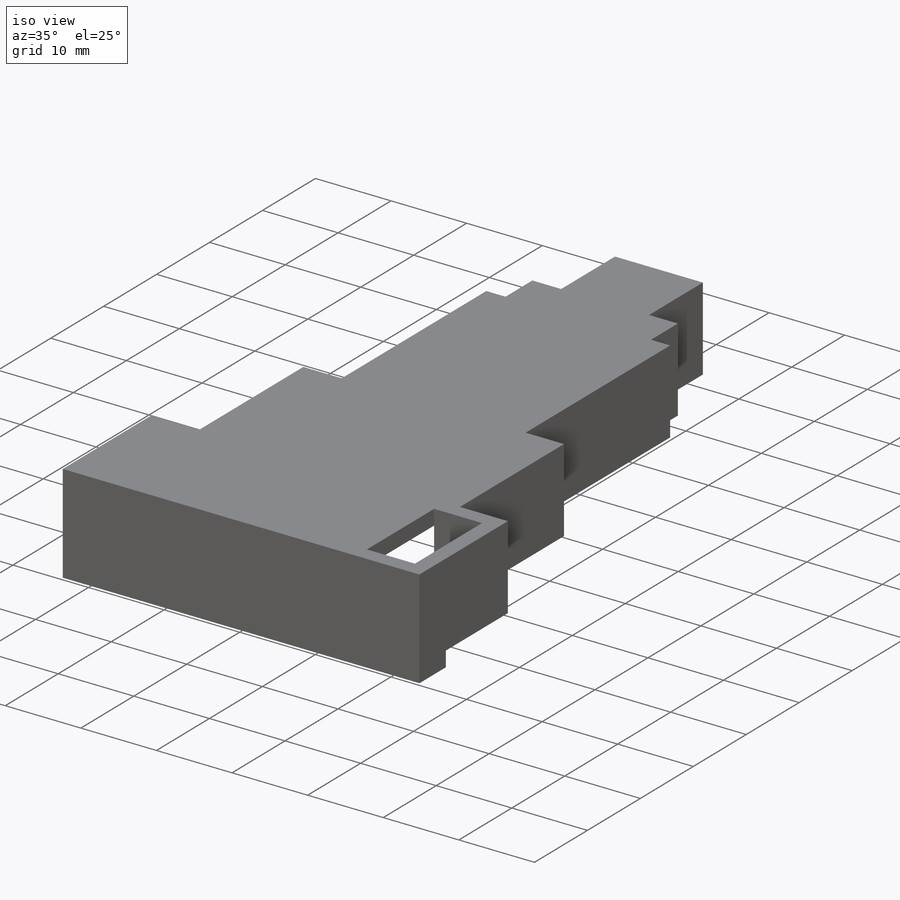
[diagram: iso view]
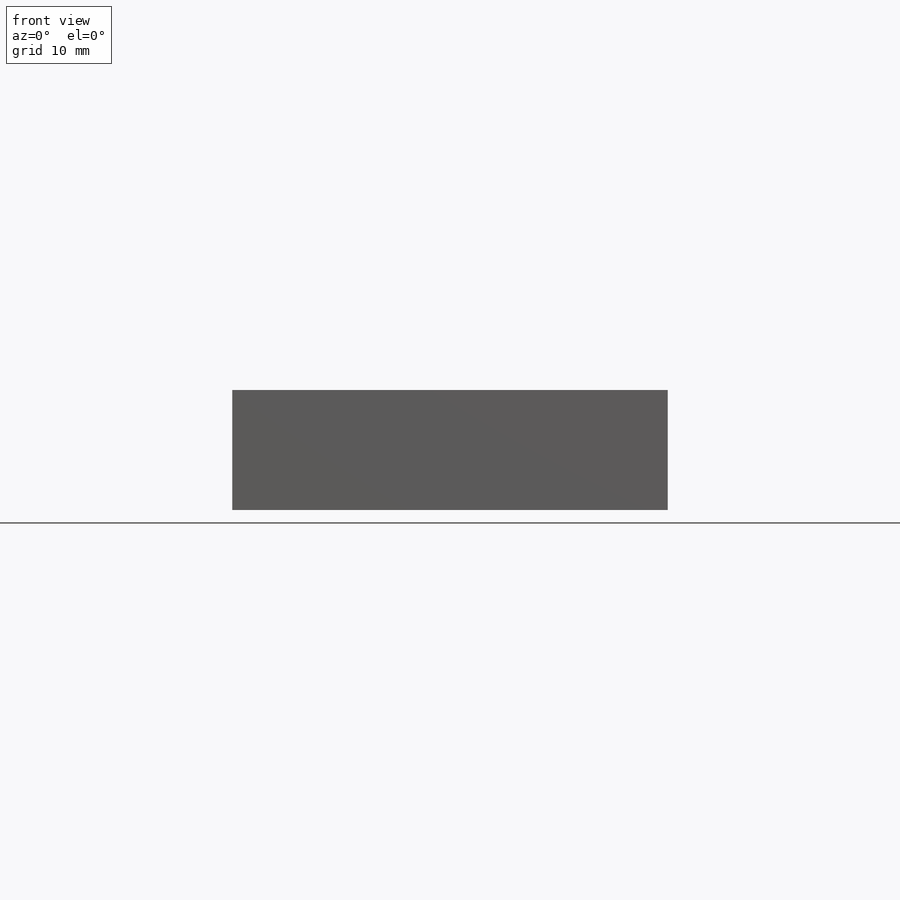
[diagram: front view]
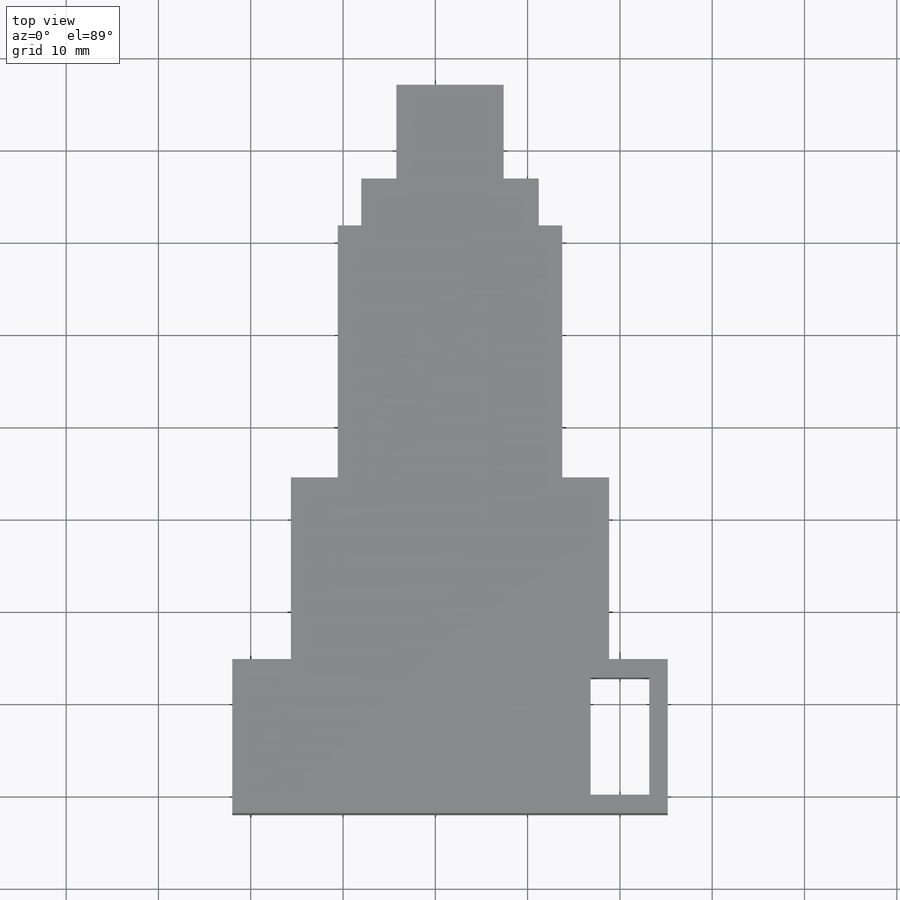
[diagram: top view]
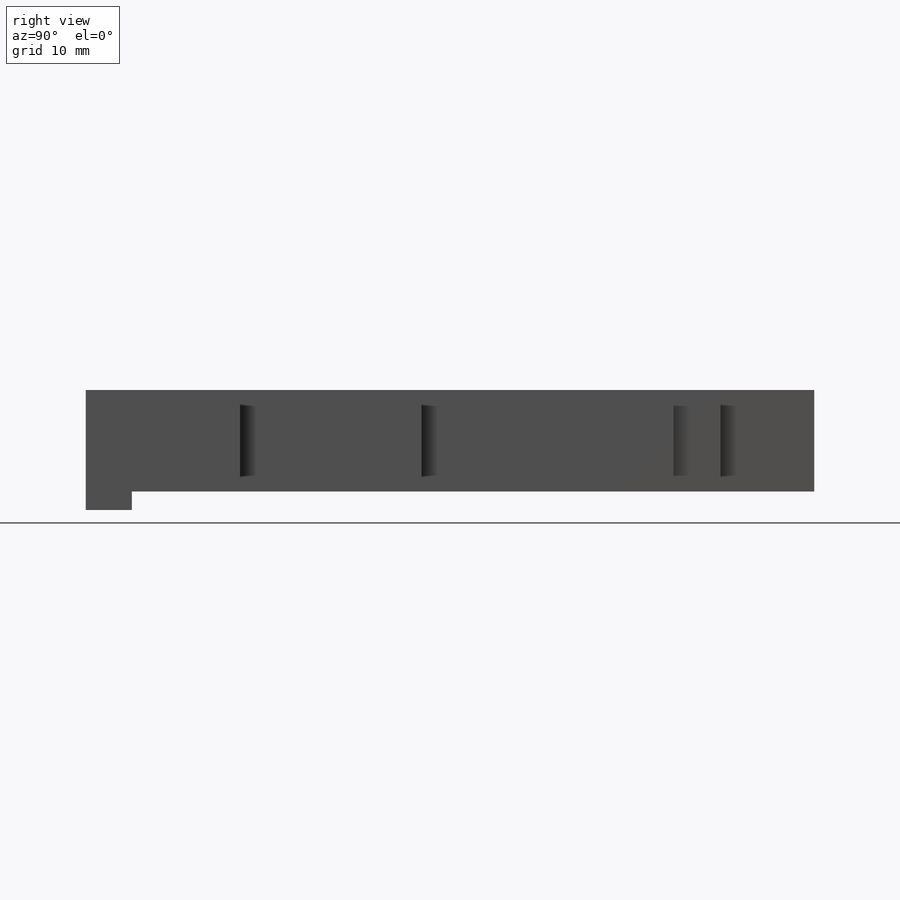
[diagram: right view]
SOLIDWORKS PART (.sldprt)
format: sldprt  version: not decoded by parser v0  size: 317,952 bytes
history: native  units: mm
features: sketch x7, extrude x5, cut_extrude x2, material x1 (+12 scaffold rows collapsed)
feature tree (27):
  scaffold x12  (default folders/planes/origin — collapsed)
  material  "Material <not specified>"
  sketch  "Sketch1"  dims[c1.D1=12.7mm c1.D2=6.35mm c1.D3=19.68mm c1.D4=5.08mm c1.D5=27.31mm c1.D6=2.54mm c1.D7=5.08mm c1.D8=3.81mm c1.D9=10.16mm c1.D10=3.81mm c1.D11=21.59mm c1.D12=2.0mm c2.D10=2.0mm]
  extrude  "Boss-Extrude2"  Depth=9mm
  sketch  "Sketch2"
  extrude  "Boss-Extrude3"  Depth=2mm
  sketch  "Sketch3"  dims[D1=5.0mm]
  extrude  "Boss-Extrude4"  Depth=2mm
  sketch  "Sketch5"
  cut_extrude  "Cut-Extrude1"  Depth=10mm
  sketch  "Sketch8"  dims[D1=1.0mm D2=1.0mm D3=1.0mm]
  extrude  "Boss-Extrude5"  Depth=10mm
  sketch  "Sketch9"  dims[D1=1.0mm D2=1.0mm D3=1.0mm]
  extrude  "Boss-Extrude6"  Depth=10mm
  sketch  "Sketch10"
  cut_extrude  "Cut-Extrude2"  Depth=8mm
decode coverage: 11 of 14 modeling features carry decoded parameters
note: suppression state not decoded; provenance and decode notes live in map.json
